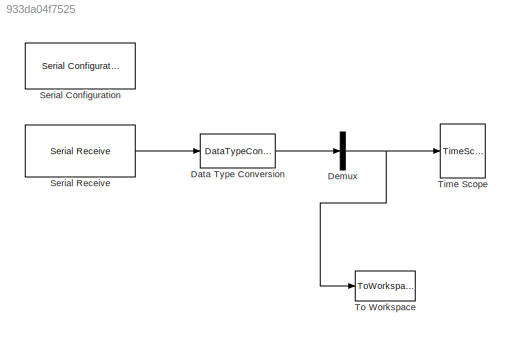
MODEL slx_933da04f7525
KIND model
BLOCK [DataTypeConversion] Data Type Conversion
  OutDataTypeStr = uint8
  OutMax = 15
  OutMin = 15
  RndMeth = Floor
  SaturateOnIntegerOverflow = off
BLOCK [Demux] Demux
  DisplayOption = bar
  Outputs = 1
  Ports = [1, 1]
BLOCK [Reference] Serial Configuration  REF=instrumentlib/Serial Configuration
  BaudRate = 9600
  ByteOrder = BigEndian
  ComPort = COM5
  ComPortMenu = COM5
  DataBits = 8
  FlowControl = hardware
  ObjConstructor = serial('COM5');
  Parity = none
  Ports = []
  Priority = -200000
  SourceBlock = instrumentlib/Serial Configuration
  SourceType = Serial Configuration
  StopBits = 1
  Timeout = 1
BLOCK [Reference] Serial Receive  REF=instrumentlib/Serial Receive
  ActionDataUnavailable = Output last received value
  ComPort = COM5
  ComPortMenu = COM5
  CustomValue = 0
  DataSize = 15
  DataType = uint8
  EnableBlockingMode = on
  Header = PS
  ObjConstructor = serial('COM5');
  Ports = [0, 1]
  SampleTime = 0.1
  SourceBlock = instrumentlib/Serial Receive
  SourceType = Serial Receive
  Terminator = CR/LF ('\r\n')
BLOCK [TimeScope] Time Scope
  CloseFcn = scopeextensions.ScopeBlock.callback(gcbh, 'onBlockClose');
  CopyFcn = scopeextensions.ScopeBlock.onCoreBlockCopy(gcbh);
  DefaultConfigurationName = spbscopes.TimeScopeBlockCfg
  DeleteFcn = scopeextensions.ScopeBlock.callback(gcbh, 'onBlockDelete');
  DestroyFcn = scopeextensions.ScopeBlock.onBlockDestroy(gcbh)
  NameChangeFcn = scopeextensions.ScopeBlock.callback(gcbh, 'onBlockRename');
  Ports = [1]
  PreDeleteFcn = scopeextensions.ScopeBlock.callback(gcbh, 'onBlockPreDelete');
  PreSaveFcn = scopeextensions.ScopeBlock.callback(gcbh, 'onModelSave');
  UserDataPersistent = on
BLOCK [ToWorkspace] To Workspace
  MaxDataPoints = inf
  Ports = [1]
  SampleTime = -1
  VariableName = simout
LINE Data Type Conversion:1 -> Demux:1
NET Demux:1 -> Time Scope:1, To Workspace:1
LINE Serial Receive:1 -> Data Type Conversion:1
note: NET lines group one-source signal fan-out (src -> all destinations, sorted); 1:1 wires keep LINE
